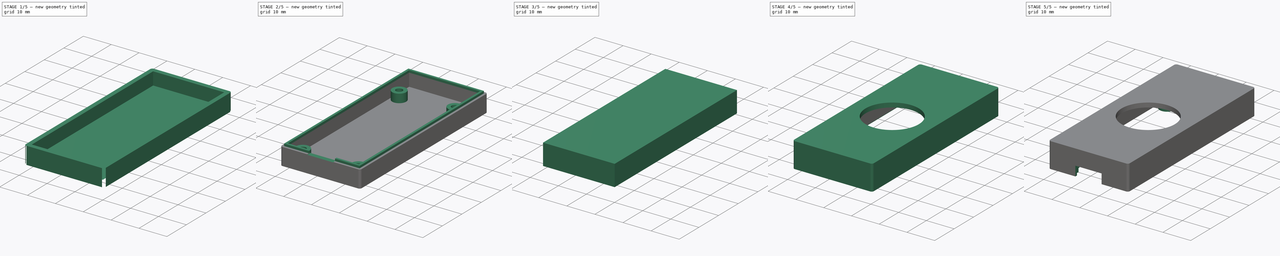
[diagram: build sequence overview — one tinted view per stage of 5, left to right]
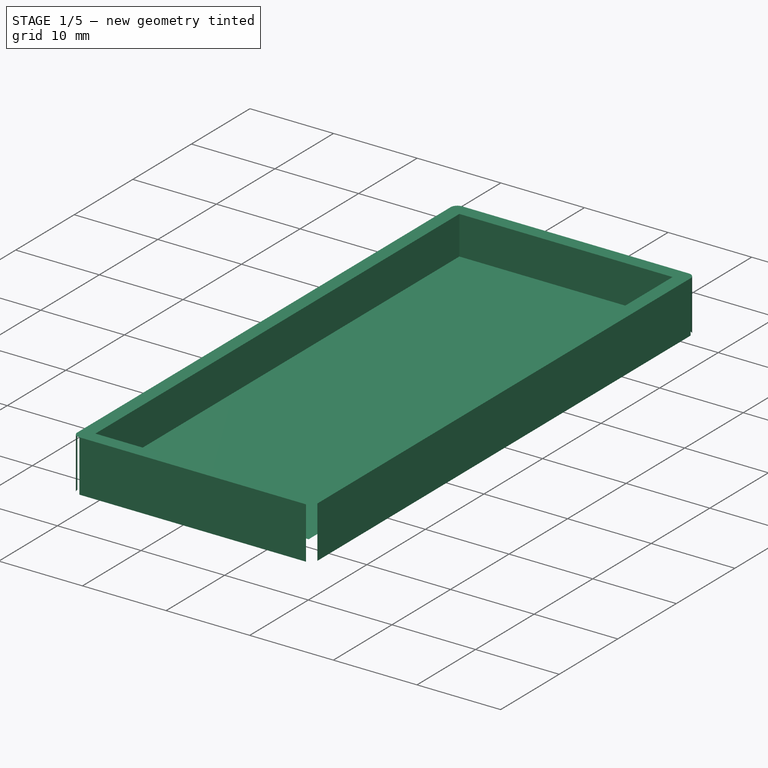
[diagram: stage 1 of 5 — iso view after this stage's code; geometry added in this stage tinted green]
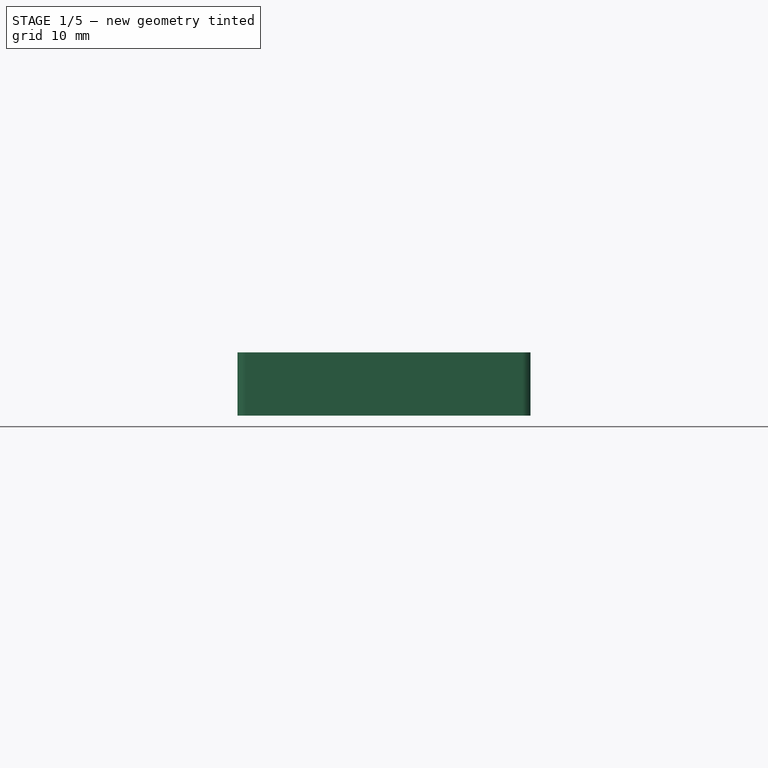
[diagram: stage 1 of 5 — front view after this stage's code; geometry added in this stage tinted green]
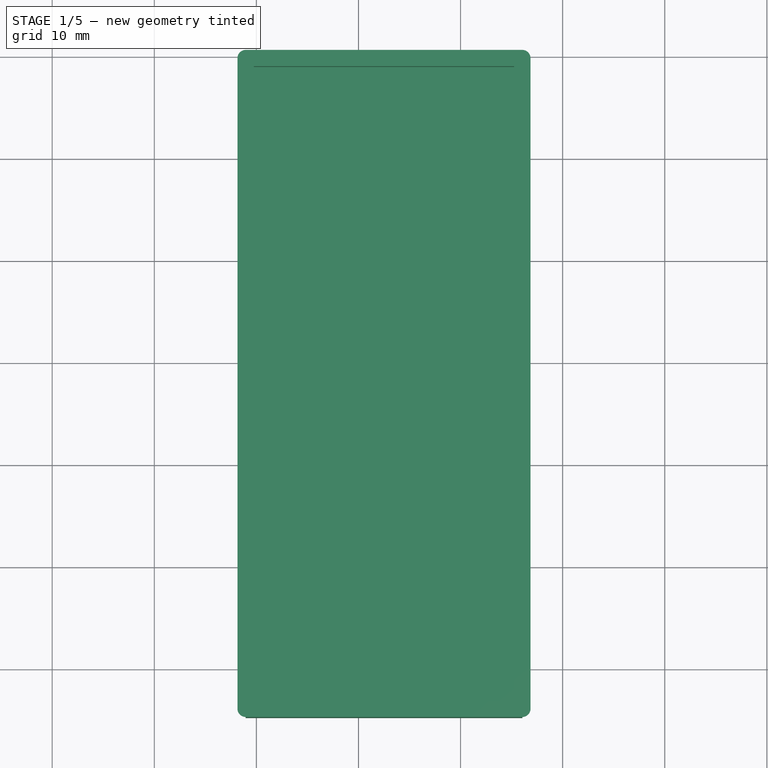
[diagram: stage 1 of 5 — top view after this stage's code; geometry added in this stage tinted green]
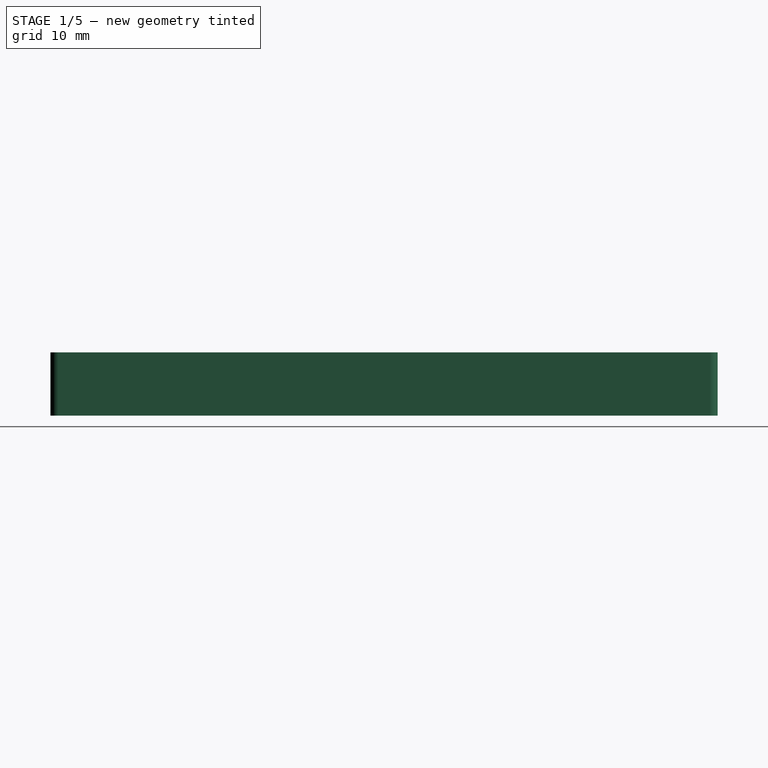
[diagram: stage 1 of 5 — right view after this stage's code; geometry added in this stage tinted green]
FCSTD DOCUMENT  (FreeCAD 1.0R39319 (Git))
Label: passkey_v3_case
License: All rights reserved
LicenseURL: https://en.wikipedia.org/wiki/All_rights_reserved
objects: Part::Feature×44, Sketcher::SketchObject×13, PartDesign::Pad×6, PartDesign::Pocket×6, App::Part×5, PartDesign::SubShapeBinder×3, PartDesign::Thickness×2, PartDesign::Fillet×2, PartDesign::Body×2, PartDesign::Hole×1
note: 126 computed .brp shape members not serialized (recipe doc carries the construction recipe); baked Part::Feature solids carry a one-line shape summary decoded from their .brp

FEATURE [Part::Feature] Part__Feature  label="R_0402_1005Metric"
  Placement = pos=(14.5,37.75,1.595) rot=(0,0,1;1.5708rad)
  shape: bbox 0.5 x 1 x 0.35 mm, 26 faces (baked)
FEATURE [Part::Feature] Part__Feature001  label="R_0402_1005Metric001"
  Placement = pos=(3.5,42,1.595) rot=(0,0,1;3.14159rad)
  shape: bbox 1 x 0.5 x 0.35 mm, 26 faces (baked)
FEATURE [Part::Feature] Part__Feature002  label="QFN-56-1EP_7x7mm_P0.4mm_EP3.2x3.2mm"
  Placement = pos=(12.5,18,1.595) rot=(0,0,1;3.14159rad)
  shape: bbox 7 x 7 x 0.9 mm, 350 faces (baked)
FEATURE [Part::Feature] Part__Feature003  label="R_0402_1005Metric002"
  Placement = pos=(19.7,24.6,1.595) rot=(0,0,1;0rad)
  shape: bbox 1 x 0.5 x 0.35 mm, 26 faces (baked)
FEATURE [Part::Feature] Part__Feature004  label="C_0402_1005Metric"
  Placement = pos=(2.3375,7.9825,1.595) rot=(0,0,1;1.5708rad)
  shape: bbox 0.5 x 1 x 0.5 mm, 28 faces (baked)
FEATURE [Part::Feature] Part__Feature005  label="COMPOUND"
  shape: bbox 8.94 x 7.9 x 4.661 mm, 889 faces, 42 solids (baked)
FEATURE [App::Part] G_SWITCH_GT_USB_7010ASV  label="G-SWITCH_GT-USB-7010ASV"
  Group = -> [Part__Feature005]
  Origin = -> Origin
  Placement = pos=(12.5,2.3,1.595) rot=(0,0,1;0rad)
FEATURE [Part::Feature] Part__Feature006  label="C_0402_1005Metric001"
  Placement = pos=(22.25,21.1,1.595) rot=(0,0,1;3.14159rad)
  shape: bbox 1 x 0.5 x 0.5 mm, 28 faces (baked)
FEATURE [Part::Feature] Part__Feature007  label="Crystal_SMD_2520-4Pin_2.5x2.0mm"
  Placement = pos=(22.4,23.4,1.595) rot=(0,0,1;1.5708rad)
  shape: bbox 2 x 2.5 x 0.83 mm, 168 faces (baked)
FEATURE [Part::Feature] Part__Feature008  label="C_0402_1005Metric002"
  Placement = pos=(6.4,10.7,1.595) rot=(0,0,1;1.5708rad)
  shape: bbox 0.5 x 1 x 0.5 mm, 28 faces (baked)
FEATURE [Part::Feature] Part__Feature009  label="D0402-BI"
  Placement = pos=(14.45,8.43,1.595) rot=(0,0,-1;1.5708rad)
  shape: bbox 0.5 x 1 x 0.351 mm, 320 faces, 18 solids (baked)
FEATURE [Part::Feature] Part__Feature010  label="R_0402_1005Metric003"
  Placement = pos=(15.7,8.44,1.595) rot=(0,0,1;1.5708rad)
  shape: bbox 0.5 x 1 x 0.35 mm, 26 faces (baked)
FEATURE [Part::Feature] Part__Feature011  label="R_0402_1005Metric004"
  Placement = pos=(11.95,8.43,1.595) rot=(0,0,1;1.5708rad)
  shape: bbox 0.5 x 1 x 0.35 mm, 26 faces (baked)
FEATURE [Part::Feature] Part__Feature012  label="C_0402_1005Metric003"
  Placement = pos=(10,23.8,1.595) rot=(0,0,1;1.5708rad)
  shape: bbox 0.5 x 1 x 0.5 mm, 28 faces (baked)
FEATURE [Part::Feature] Part__Feature013  label="R_0402_1005Metric005"
  Placement = pos=(19,43.7,1.595) rot=(0,0,1;1.5708rad)
  shape: bbox 0.5 x 1 x 0.35 mm, 26 faces (baked)
FEATURE [Part::Feature] Part__Feature014  label="C_0402_1005Metric004"
  Placement = pos=(18.7,7.98,1.595) rot=(0,0,1;0rad)
  shape: bbox 1 x 0.5 x 0.5 mm, 28 faces (baked)
FEATURE [Part::Feature] Part__Feature015  label="C_0402_1005Metric005"
  Placement = pos=(12.85,10.71,1.595) rot=(0,0,-1;1.5708rad)
  shape: bbox 0.5 x 1 x 0.5 mm, 28 faces (baked)
FEATURE [Part::Feature] Part__Feature016  label="Fuse_0402_1005Metric"
  Placement = pos=(8.2,8.455,1.595) rot=(0,0,1;1.5708rad)
  shape: bbox 0.52 x 1 x 0.35 mm, 26 faces (baked)
FEATURE [Part::Feature] Part__Feature017  label="D0402-BI001"
  Placement = pos=(10.7,8.45,1.595) rot=(0,0,1;1.5708rad)
  shape: bbox 0.5 x 1 x 0.351 mm, 320 faces, 18 solids (baked)
FEATURE [Part::Feature] Part__Feature018  label="C_0402_1005Metric006"
  Placement = pos=(17.5,14.57,1.595) rot=(0,0,-1;1.5708rad)
  shape: bbox 0.5 x 1 x 0.5 mm, 28 faces (baked)
FEATURE [Part::Feature] Part__Feature019  label="SW_SPST_B3U-1000P"
  Placement = pos=(21.75,42.5,1.595) rot=(0,0,-1;1.5708rad)
  shape: bbox 2.5 x 4 x 1.6 mm, 81 faces (baked)
FEATURE [Part::Feature] Part__Feature020  label="C_0402_1005Metric007"
  Placement = pos=(9.75,37.75,1.595) rot=(0,0,-1;1.5708rad)
  shape: bbox 0.5 x 1 x 0.5 mm, 28 faces (baked)
FEATURE [Part::Feature] Part__Feature021  label="C_0402_1005Metric008"
  Placement = pos=(12.65,23.8,1.595) rot=(0,0,-1;1.5708rad)
  shape: bbox 0.5 x 1 x 0.5 mm, 28 faces (baked)
FEATURE [Part::Feature] Part__Feature022  label="R_0402_1005Metric006"
  Placement = pos=(9.45,8.44,1.595) rot=(0,0,1;1.5708rad)
  shape: bbox 0.5 x 1 x 0.35 mm, 26 faces (baked)
FEATURE [Part::Feature] Part__Feature023  label="SOT-23"
  Placement = pos=(4.9,7.9625,1.595) rot=(0,0,1;0rad)
  shape: bbox 2.5 x 3 x 1.2 mm, 69 faces (baked)
FEATURE [Part::Feature] Part__Feature024  label="R_0402_1005Metric007"
  Placement = pos=(13.2,8.44,1.595) rot=(0,0,1;1.5708rad)
  shape: bbox 0.5 x 1 x 0.35 mm, 26 faces (baked)
FEATURE [Part::Feature] Part__Feature025  label="C_0402_1005Metric009"
  Placement = pos=(22.5,25.8,1.595) rot=(0,0,1;0rad)
  shape: bbox 1 x 0.5 x 0.5 mm, 28 faces (baked)
FEATURE [Part::Feature] Part__Feature026  label="mod"
  Placement = pos=(-0.431792,-1.84981,21) rot=(0,0,1;0rad)
  shape: bbox 21 x 6.2 x 21 mm, 29 faces (baked)
FEATURE [Part::Feature] Part__Feature027  label="CP-6852 PCB"
  Placement = pos=(-0.431792,3.25019,21) rot=(0,0,1;0rad)
  shape: bbox 17.4 x 6.3 x 17.4 mm, 20 faces (baked)
FEATURE [App::Part] ZW_101  label="ZW-101"
  Group = -> [Part__Feature026,Part__Feature027]
  Origin = -> Origin001
FEATURE [Part::Feature] Part__Feature028  label="HolderWStub"
  shape: bbox 25 x 6.2 x 25 mm, 49 faces (baked)
FEATURE [App::Part] ZW101_w_holder
  Group = -> [ZW_101,Part__Feature028]
  Origin = -> Origin002
  Placement = pos=(12.75,47,6.595) rot=(1,0,0;1.5708rad)
FEATURE [Part::Feature] Part__Feature029  label="Passkey_V3 1.28.1"
  shape: bbox 2 x 3.02 x 0.611 mm, 428 faces, 14 solids (baked)
FEATURE [App::Part] USON_8_L3_0_W2_0_P0_50_BL_EP  label="USON-8_L3.0-W2.0-P0.50-BL-EP"
  Group = -> [Part__Feature029]
  Origin = -> Origin003
  Placement = pos=(19.3321,9.75,1.595) rot=(0,0,1;1.5708rad)
FEATURE [Part::Feature] Part__Feature030  label="CONN-SMD_6P-P1.00_XUNPU_WAFER-SH1.0-6PWB"
  Placement = pos=(12.5,42,3.195) rot=(0,0,1;3.14159rad)
  shape: bbox 8.36 x 5.05 x 3.14 mm, 536 faces, 3 solids (baked)
FEATURE [Part::Feature] Part__Feature031  label="R_0402_1005Metric008"
  Placement = pos=(13,37.75,1.595) rot=(0,0,1;1.5708rad)
  shape: bbox 0.5 x 1 x 0.35 mm, 26 faces (baked)
FEATURE [Part::Feature] Part__Feature032  label="LED_0603_1608Metric"
  Placement = pos=(3.7125,44,1.595) rot=(0,0,1;3.14159rad)
  shape: bbox 1.6 x 0.8 x 1.1 mm, 50 faces (baked)
FEATURE [Part::Feature] Part__Feature033  label="C_0402_1005Metric010"
  Placement = pos=(7.5,15.82,1.595) rot=(0,0,1;1.5708rad)
  shape: bbox 0.5 x 1 x 0.5 mm, 28 faces (baked)
FEATURE [Part::Feature] Part__Feature034  label="R_0402_1005Metric009"
  Placement = pos=(8.65,10.68,1.595) rot=(0,0,-1;1.5708rad)
  shape: bbox 0.5 x 1 x 0.35 mm, 26 faces (baked)
FEATURE [Part::Feature] Part__Feature035  label="C_0402_1005Metric011"
  Placement = pos=(9.65,10.7,1.595) rot=(0,0,1;1.5708rad)
  shape: bbox 0.5 x 1 x 0.5 mm, 28 faces (baked)
FEATURE [Part::Feature] Part__Feature036  label="C_0402_1005Metric012"
  Placement = pos=(7.5,18.55,1.595) rot=(0,0,-1;1.5708rad)
  shape: bbox 0.5 x 1 x 0.5 mm, 28 faces (baked)
FEATURE [Part::Feature] Part__Feature037  label="C_0402_1005Metric013"
  Placement = pos=(7.6,10.7,1.595) rot=(0,0,-1;1.5708rad)
  shape: bbox 0.5 x 1 x 0.5 mm, 28 faces (baked)
FEATURE [Part::Feature] Part__Feature038  label="C_0402_1005Metric014"
  Placement = pos=(17.5,19.55,1.595) rot=(0,0,1;1.5708rad)
  shape: bbox 0.5 x 1 x 0.5 mm, 28 faces (baked)
FEATURE [Part::Feature] Part__Feature039  label="C_0402_1005Metric015"
  Placement = pos=(13.9,10.74,1.595) rot=(0,0,1;1.5708rad)
  shape: bbox 0.5 x 1 x 0.5 mm, 28 faces (baked)
FEATURE [Part::Feature] Part__Feature040  label="C_0402_1005Metric016"
  Placement = pos=(11.5,23.8,1.595) rot=(0,0,-1;1.5708rad)
  shape: bbox 0.5 x 1 x 0.5 mm, 28 faces (baked)
FEATURE [Part::Feature] Part__Feature041  label="C_0402_1005Metric017"
  Placement = pos=(10.65,10.7,1.595) rot=(0,0,1;1.5708rad)
  shape: bbox 0.5 x 1 x 0.5 mm, 28 faces (baked)
FEATURE [Part::Feature] Part__Feature042  label="C_0402_1005Metric018"
  Placement = pos=(11.5,37.75,1.595) rot=(0,0,1;1.5708rad)
  shape: bbox 0.5 x 1 x 0.5 mm, 28 faces (baked)
FEATURE [Part::Feature] Part__Feature043  label="Passkey_V3_PCB"
  shape: bbox 25 x 56 x 1.51 mm, 36 faces (baked)
FEATURE [App::Part] Passkey_V3_1  label="Passkey_V3 1"
  Group = -> [Part__Feature,Part__Feature001,Part__Feature002,Part__Feature003,Part__Feature004,G_SWITCH_GT_USB_7010ASV,Part__Feature006,Part__Feature007,Part__Feature008,Part__Feature009,Part__Feature010,Part__Feature011,Part__Feature012,Part__Feature013,Part__Feature014,Part__Feature015,Part__Feature016,Part__Feature017,Part__Feature018,Part__Feature019,Part__Feature020,Part__Feature021,Part__Feature022,+19 more]
  Origin = -> Origin004
FEATURE [PartDesign::SubShapeBinder] Binder
  BindCopyOnChange = 0
  BindMode = 0
  ClaimChildren = false
  Context = -> Body [Binder.]
  Fuse = false
  MakeFace = true
  OffsetFill = false
  OffsetIntersection = false
  OffsetJoinType = 0
  OffsetOpenResult = false
  PartialLoad = false
  Relative = true
  Support = -> [Passkey_V3_1]
  _Version = 2
FEATURE [Sketcher::SketchObject] Sketch
  ArcFitTolerance = 1e-06
  AttachmentSupport = -> [Binder]
  ExternalGeometry = -> [Binder]
  FullyConstrained = true
  MakeInternals = false
  MapMode = 5
  Placement = pos=(0,0,1.51) rot=(0,0,1;0rad)
  sketch-geometry (6):
    g0: GeomPoint X=12.5 Y=25 Z=0
    g1: GeomPoint [constr] X=12.5 Y=25 Z=0
    g2: LineSegment StartX=-0.25 StartY=59 StartZ=0 EndX=-0.25 EndY=-3.15 EndZ=0
    g3: LineSegment StartX=-0.25 StartY=-3.15 StartZ=0 EndX=25.25 EndY=-3.15 EndZ=0
    g4: LineSegment StartX=25.25 StartY=-3.15 StartZ=0 EndX=25.25 EndY=59 EndZ=0
    g5: LineSegment StartX=25.25 StartY=59 StartZ=0 EndX=-0.25 EndY=59 EndZ=0
  constraints (14):
    c: Symmetric(g-5,g-6,g0)
    c: Coincident(g1,g0)
    c: Coincident(g2,g3)
    c: Coincident(g3,g4)
    c: Coincident(g4,g5)
    c: Coincident(g5,g2)
    c: Vertical(g2)
    c: Vertical(g4)
    c: Horizontal(g3)
    c: Horizontal(g5)
    c: DistanceX(g2,g-4) = 0.25
    c: DistanceX(g-6,g3) = 0.25
    c: DistanceY(g3,g-6) = 0.15
    c: DistanceY(g-5,g4) = 6
FEATURE [PartDesign::Pad] Pad
  Direction = (0,0,1)
  Length = 4.6
  Length2 = 10
  Profile = -> Sketch
  ReferenceAxis = -> Sketch [N_Axis]
  Reversed = true
  Suppressed = false
  Type = 0
FEATURE [PartDesign::Thickness] Thickness
  Base = -> Pad [Face5]
  BaseFeature = -> Pad
  Intersection = false
  Join = 1
  Mode = 0
  SupportTransform = false
  Suppressed = false
  Value = 1.6
FEATURE [PartDesign::Fillet] Fillet
  Base = -> Thickness [Edge19,Edge20,Edge17,Edge22]
  BaseFeature = -> Thickness
  Radius = 0.8
  SupportTransform = false
  Suppressed = false
  UseAllEdges = false
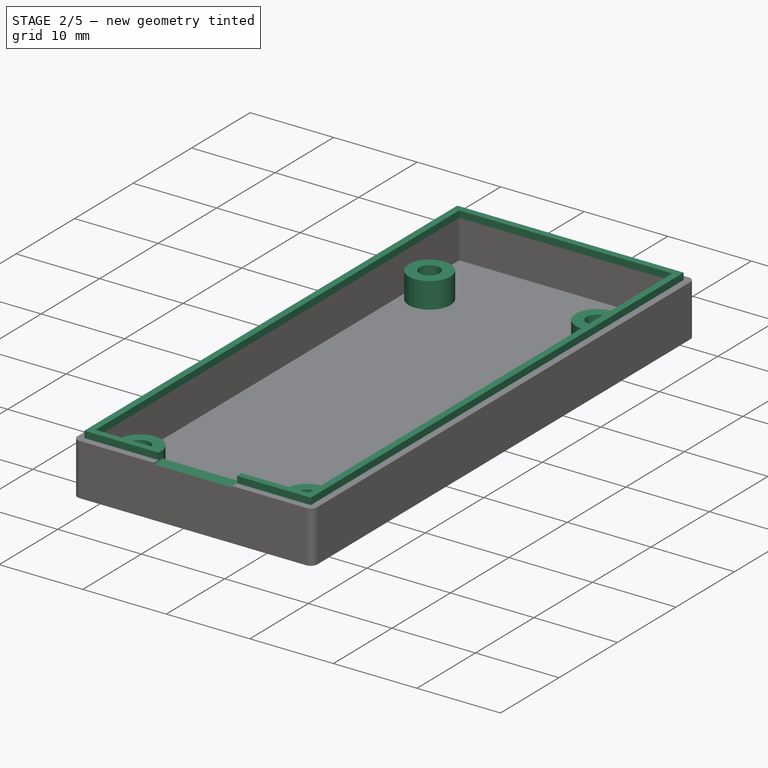
[diagram: stage 2 of 5 — iso view after this stage's code; geometry added in this stage tinted green]
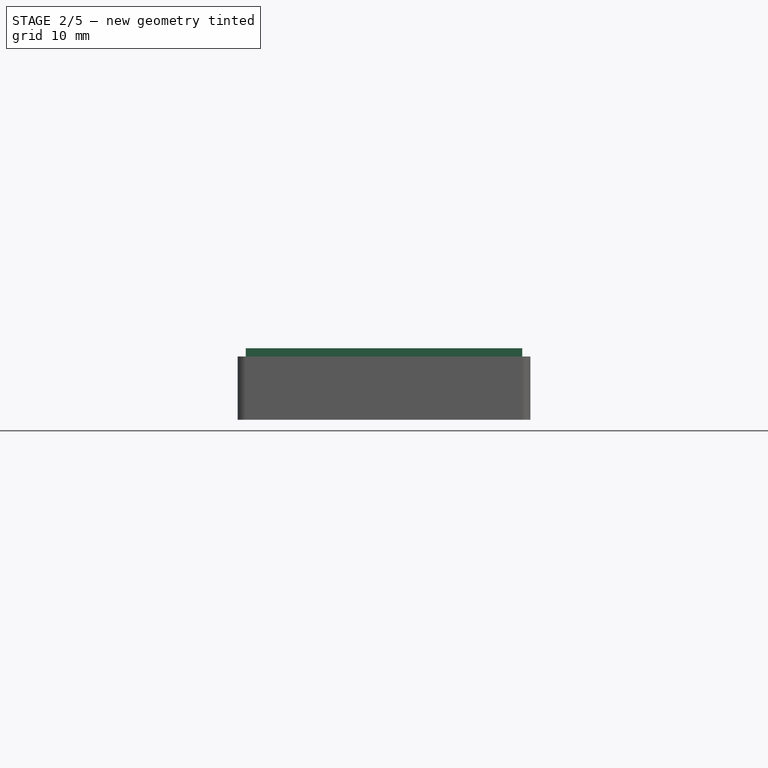
[diagram: stage 2 of 5 — front view after this stage's code; geometry added in this stage tinted green]
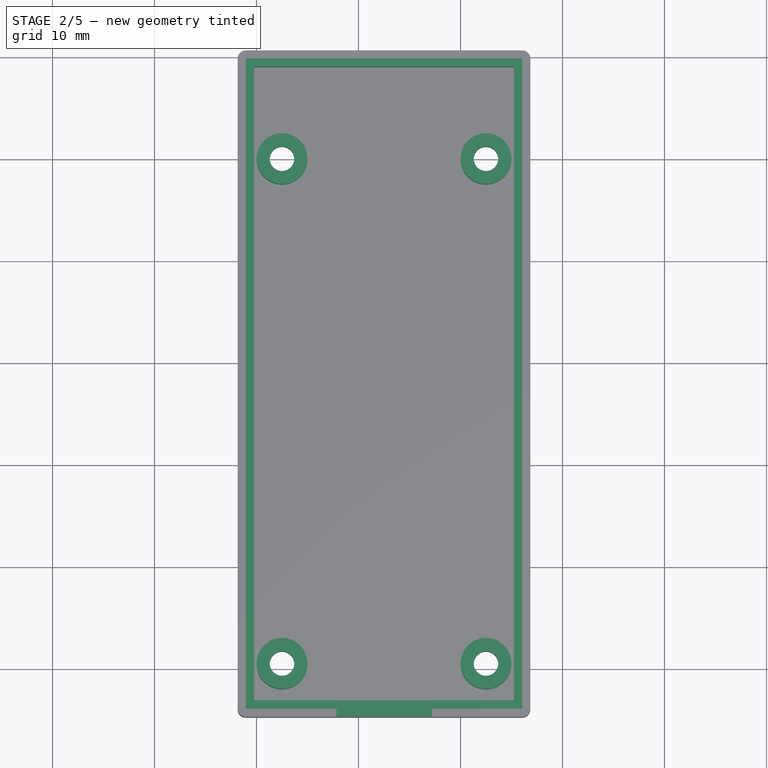
[diagram: stage 2 of 5 — top view after this stage's code; geometry added in this stage tinted green]
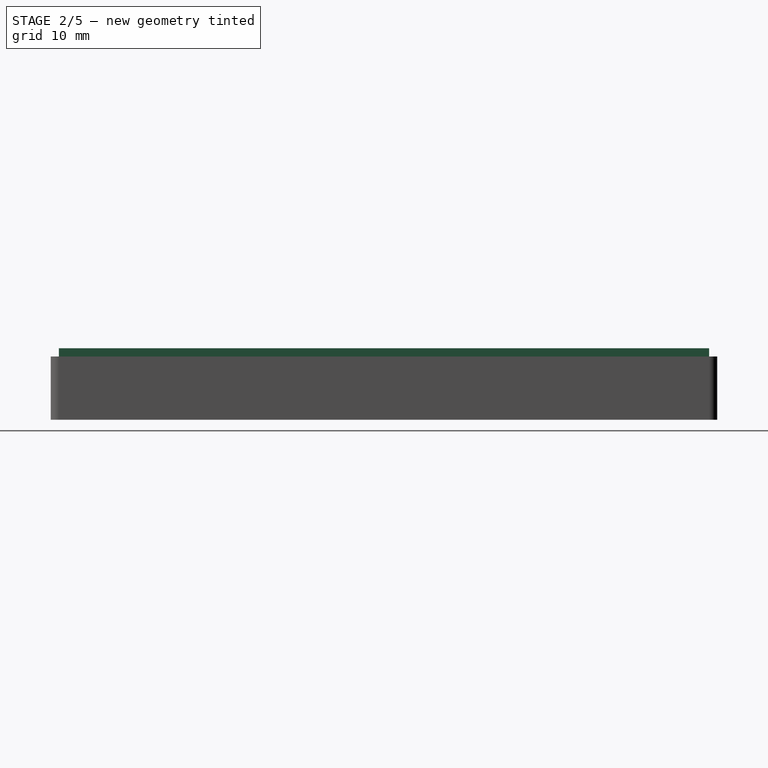
[diagram: stage 2 of 5 — right view after this stage's code; geometry added in this stage tinted green]
FEATURE [Sketcher::SketchObject] Sketch003
  ArcFitTolerance = 1e-06
  AttachmentSupport = -> [Fillet]
  ExternalGeometry = -> [Fillet]
  FullyConstrained = true
  MakeInternals = false
  MapMode = 5
  Placement = pos=(0,0,1.51) rot=(0,0,1;0rad)
  sketch-geometry (10):
    g0: LineSegment StartX=-0.25 StartY=59 StartZ=0 EndX=-0.25 EndY=-3.15 EndZ=0
    g1: LineSegment StartX=-0.25 StartY=-3.15 StartZ=0 EndX=25.25 EndY=-3.15 EndZ=0
    g2: LineSegment StartX=25.25 StartY=-3.15 StartZ=0 EndX=25.25 EndY=59 EndZ=0
    g3: LineSegment StartX=25.25 StartY=59 StartZ=0 EndX=-0.25 EndY=59 EndZ=0
    g4: GeomPoint X=12.5 Y=27.925 Z=0
    g5: LineSegment StartX=26.05 StartY=-3.95 StartZ=0 EndX=26.05 EndY=59.8 EndZ=0
    g6: LineSegment StartX=26.05 StartY=59.8 StartZ=0 EndX=-1.05 EndY=59.8 EndZ=0
    g7: LineSegment StartX=-1.05 StartY=59.8 StartZ=0 EndX=-1.05 EndY=-3.95 EndZ=0
    g8: LineSegment StartX=-1.05 StartY=-3.95 StartZ=0 EndX=26.05 EndY=-3.95 EndZ=0
    g9: GeomPoint [constr] X=12.5 Y=27.925 Z=0
  constraints (23):
    c: Coincident(g0,g1)
    c: Coincident(g1,g2)
    c: Coincident(g2,g3)
    c: Coincident(g3,g0)
    c: Vertical(g0)
    c: Vertical(g2)
    c: Horizontal(g1)
    c: Horizontal(g3)
    c: Coincident(g0,g-4)
    c: Coincident(g1,g-5)
    c: Symmetric(g2,g0,g4)
    c: Coincident(g5,g6)
    c: Coincident(g6,g7)
    c: Coincident(g7,g8)
    c: Coincident(g8,g5)
    c: Vertical(g5)
    c: Vertical(g7)
    c: Horizontal(g6)
    c: Horizontal(g8)
    c: Symmetric(g7,g5,g9)
    c: Coincident(g9,g4)
    c: DistanceX(g6,g0) = 0.8
    c: DistanceY(g0,g6) = 0.8
FEATURE [PartDesign::Pad] Pad002
  BaseFeature = -> Fillet
  Direction = (0,0,1)
  Length = 0.8
  Length2 = 10
  Profile = -> Sketch003
  ReferenceAxis = -> Sketch003 [N_Axis]
  Suppressed = false
  Type = 0
FEATURE [Sketcher::SketchObject] Sketch004
  ArcFitTolerance = 1e-06
  AttachmentSupport = -> [Pad002]
  ExternalGeometry = -> [Binder,Pad002]
  FullyConstrained = true
  MakeInternals = false
  MapMode = 5
  Placement = pos=(0,-3.15,0) rot=(0,0.707107,0.707107;3.14159rad)
  sketch-geometry (4):
    g0: LineSegment StartX=-17.22 StartY=2.31 StartZ=0 EndX=-17.22 EndY=1.345 EndZ=0
    g1: LineSegment StartX=-17.22 StartY=1.345 StartZ=0 EndX=-7.83 EndY=1.345 EndZ=0
    g2: LineSegment StartX=-7.83 StartY=1.345 StartZ=0 EndX=-7.83 EndY=2.31 EndZ=0
    g3: LineSegment StartX=-7.83 StartY=2.31 StartZ=0 EndX=-17.22 EndY=2.31 EndZ=0
  constraints (12):
    c: Coincident(g0,g1)
    c: Coincident(g1,g2)
    c: Coincident(g2,g3)
    c: Coincident(g3,g0)
    c: Vertical(g0)
    c: Vertical(g2)
    c: Horizontal(g1)
    c: Horizontal(g3)
    c: DistanceX(g0,g-7) = 0.25
    c: DistanceX(g-3,g1) = 0.25
    c: DistanceY(g0,g-6) = 0.25
    c: PointOnObject(g0,g-8)
FEATURE [PartDesign::Pocket] Pocket001
  BaseFeature = -> Pad002
  Direction = (0,-1,2e-16)
  Length = 5
  Length2 = 5
  Profile = -> Sketch004
  ReferenceAxis = -> Sketch004 [N_Axis]
  Suppressed = false
  Type = 0
FEATURE [Sketcher::SketchObject] Sketch005
  ArcFitTolerance = 1e-06
  AttachmentSupport = -> [Pocket001]
  ExternalGeometry = -> [Binder]
  FullyConstrained = true
  MakeInternals = false
  MapMode = 5
  Placement = pos=(0,0,-3.09) rot=(0,0,1;0rad)
  sketch-geometry (4):
    g0: Circle CenterX=2.5 CenterY=50 CenterZ=0 NormalX=0 NormalY=0 NormalZ=1 AngleXU=0 Radius=2.5
    g1: Circle CenterX=22.5 CenterY=50 CenterZ=0 NormalX=0 NormalY=0 NormalZ=1 AngleXU=0 Radius=2.5
    g2: Circle CenterX=2.5 CenterY=0.5 CenterZ=0 NormalX=0 NormalY=0 NormalZ=1 AngleXU=0 Radius=2.5
    g3: Circle CenterX=22.5 CenterY=0.5 CenterZ=0 NormalX=0 NormalY=0 NormalZ=1 AngleXU=0 Radius=2.5
  constraints (8):
    c: Coincident(g0,g-3)
    c: Coincident(g1,g-4)
    c: Coincident(g2,g-5)
    c: Coincident(g3,g-6)
    c: Equal(g3,g2)
    c: Equal(g2,g0)
    c: Equal(g0,g1)
    c: Radius(g0) = 2.5
FEATURE [PartDesign::Pad] Pad003
  BaseFeature = -> Pocket001
  Direction = (0,0,1)
  Length = 10
  Length2 = 10
  Profile = -> Sketch005
  ReferenceAxis = -> Sketch005 [N_Axis]
  Suppressed = false
  Type = 3
  UpToFace = -> Binder [Face4131]
FEATURE [Sketcher::SketchObject] Sketch006
  ArcFitTolerance = 1e-06
  AttachmentSupport = -> [Pad003]
  ExternalGeometry = -> [Pad003]
  FullyConstrained = true
  MakeInternals = false
  MapMode = 5
  Placement = pos=(0,0,-4.69) rot=(1,0,0;3.14159rad)
  sketch-geometry (4):
    g0: Circle CenterX=2.5 CenterY=-0.5 CenterZ=0 NormalX=0 NormalY=0 NormalZ=1 AngleXU=0 Radius=1
    g1: Circle CenterX=22.5 CenterY=-0.5 CenterZ=0 NormalX=0 NormalY=0 NormalZ=1 AngleXU=0 Radius=1
    g2: Circle CenterX=2.5 CenterY=-50 CenterZ=0 NormalX=0 NormalY=0 NormalZ=1 AngleXU=0 Radius=1
    g3: Circle CenterX=22.5 CenterY=-50 CenterZ=0 NormalX=0 NormalY=0 NormalZ=1 AngleXU=0 Radius=1
  constraints (8):
    c: Coincident(g0,g-5)
    c: Coincident(g1,g-4)
    c: Coincident(g2,g-6)
    c: Coincident(g3,g-3)
    c: Equal(g2,g3)
    c: Equal(g3,g0)
    c: Equal(g0,g1)
    c: Radius(g0) = 1
FEATURE [PartDesign::Hole] Hole
  BaseFeature = -> Pad003
  CustomThreadClearance = 0
  Depth = 25
  DepthType = 0
  Diameter = 2.4
  DrillForDepth = false
  DrillPoint = 1
  DrillPointAngle = 118
  HoleCutCountersinkAngle = 90
  HoleCutCustomValues = false
  HoleCutDepth = 0
  HoleCutDiameter = 4
  HoleCutType = 2
  ModelThread = false
  Profile = -> Sketch006
  Suppressed = false
  Tapered = false
  TaperedAngle = 90
  ThreadClass = 0
  ThreadDepth = 25
  ThreadDepthType = 0
  ThreadDirection = 0
  ThreadFit = 0
  ThreadSize = 6
  ThreadType = 1
  Threaded = false
  UseCustomThreadClearance = false
  expr: HoleCutDiameter = 4
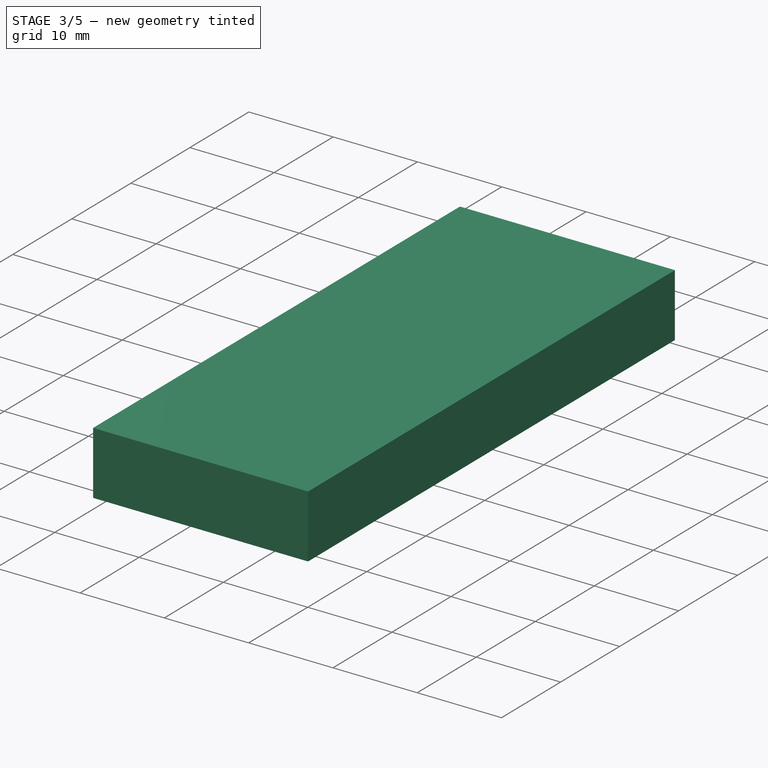
[diagram: stage 3 of 5 — iso view after this stage's code; geometry added in this stage tinted green]
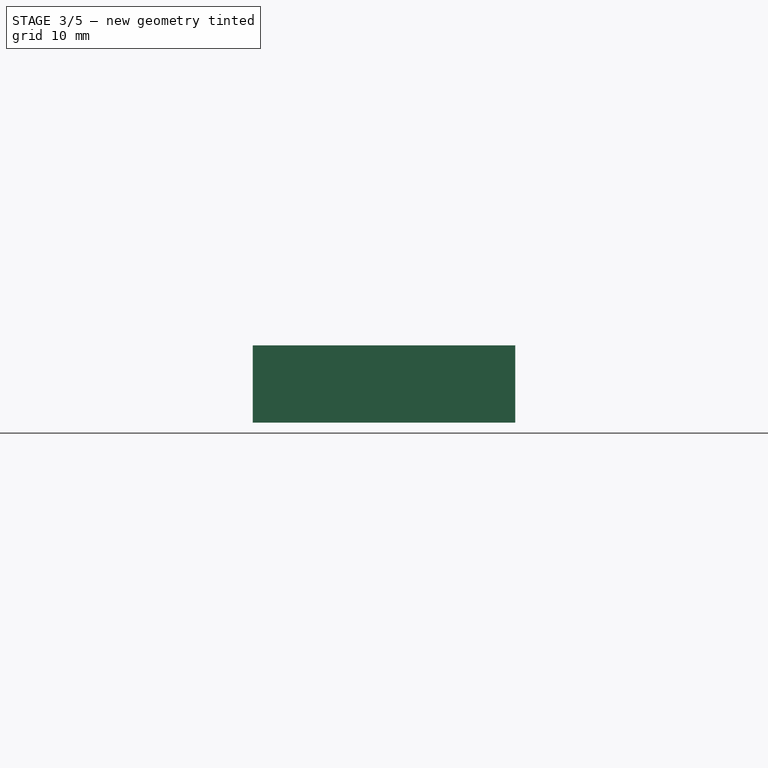
[diagram: stage 3 of 5 — front view after this stage's code; geometry added in this stage tinted green]
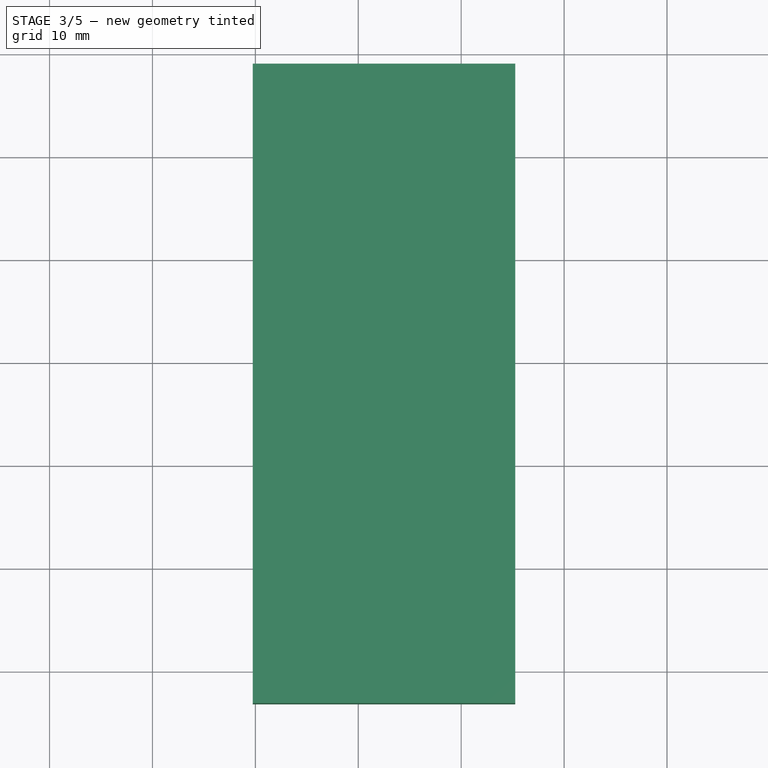
[diagram: stage 3 of 5 — top view after this stage's code; geometry added in this stage tinted green]
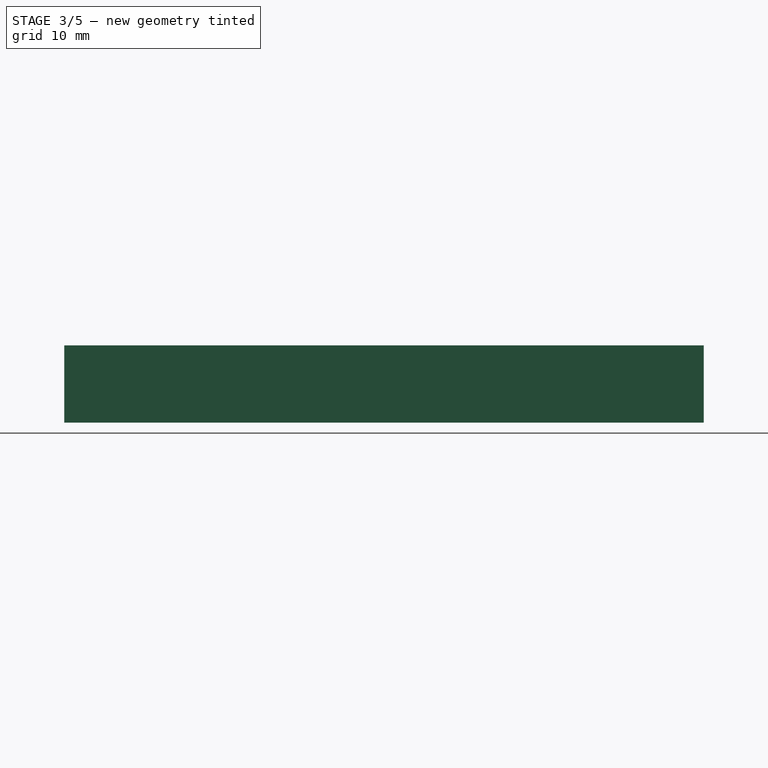
[diagram: stage 3 of 5 — right view after this stage's code; geometry added in this stage tinted green]
FEATURE [Sketcher::SketchObject] Sketch001
  ArcFitTolerance = 1e-06
  AttachmentSupport = -> [Thickness]
  ExternalGeometry = -> [Binder]
  FullyConstrained = true
  MakeInternals = false
  MapMode = 5
  Placement = pos=(0,0,-3.09) rot=(0,0,1;0rad)
  sketch-geometry (4):
    g0: Circle CenterX=2.5 CenterY=0.5 CenterZ=0 NormalX=0 NormalY=0 NormalZ=1 AngleXU=0 Radius=2.5
    g1: Circle CenterX=22.5 CenterY=0.5 CenterZ=0 NormalX=0 NormalY=0 NormalZ=1 AngleXU=0 Radius=2.5
    g2: Circle CenterX=2.5 CenterY=50 CenterZ=0 NormalX=0 NormalY=0 NormalZ=1 AngleXU=0 Radius=2.5
    g3: Circle CenterX=22.5 CenterY=50 CenterZ=0 NormalX=0 NormalY=0 NormalZ=1 AngleXU=0 Radius=2.5
  constraints (8):
    c: Coincident(g0,g-5)
    c: Coincident(g1,g-6)
    c: Coincident(g2,g-3)
    c: Coincident(g3,g-4)
    c: Equal(g3,g2)
    c: Equal(g2,g0)
    c: Equal(g0,g1)
    c: Radius(g0) = 2.5
FEATURE [PartDesign::Pad] Pad001
  BaseFeature = -> Thickness
  Direction = (0,0,1)
  Length = 10
  Length2 = 10
  Profile = -> Sketch001
  ReferenceAxis = -> Sketch001 [N_Axis]
  Suppressed = false
  Type = 3
  UpToFace = -> Binder [Face4131]
FEATURE [Sketcher::SketchObject] Sketch002
  ArcFitTolerance = 1e-06
  AttachmentSupport = -> [Pad001]
  ExternalGeometry = -> [Pad001]
  FullyConstrained = true
  MakeInternals = false
  MapMode = 5
  sketch-geometry (4):
    g0: Circle CenterX=2.5 CenterY=50 CenterZ=0 NormalX=0 NormalY=0 NormalZ=1 AngleXU=0 Radius=1.6
    g1: Circle CenterX=22.5 CenterY=50 CenterZ=0 NormalX=0 NormalY=0 NormalZ=1 AngleXU=0 Radius=1.6
    g2: Circle CenterX=2.5 CenterY=0.5 CenterZ=0 NormalX=0 NormalY=0 NormalZ=1 AngleXU=0 Radius=1.6
    g3: Circle CenterX=22.5 CenterY=0.5 CenterZ=0 NormalX=0 NormalY=0 NormalZ=1 AngleXU=0 Radius=1.6
  constraints (8):
    c: Coincident(g0,g-3)
    c: Coincident(g1,g-4)
    c: Coincident(g2,g-5)
    c: Coincident(g3,g-6)
    c: Equal(g3,g2)
    c: Equal(g2,g0)
    c: Equal(g0,g1)
    c: Radius(g0) = 1.6
FEATURE [PartDesign::Pocket] Pocket
  BaseFeature = -> Pad001
  Direction = (0,0,-1)
  Length = 3
  Length2 = 5
  Profile = -> Sketch002
  ReferenceAxis = -> Sketch002 [N_Axis]
  Suppressed = false
  Type = 0
FEATURE [PartDesign::Body] Body  label="Bottom"
  AllowCompound = false
  Group = -> [Binder,Sketch,Pad,Thickness,Sketch001,Pad001,Sketch002,Pocket,Fillet,Sketch003,Pad002,Sketch004,Pocket001,Sketch005,Pad003,Sketch006,Hole]
  Origin = -> Origin005
  Tip = -> Hole
FEATURE [PartDesign::SubShapeBinder] Binder001
  BindCopyOnChange = 0
  BindMode = 0
  ClaimChildren = false
  Context = -> Body001 [Binder001.]
  Fuse = false
  MakeFace = true
  OffsetFill = false
  OffsetIntersection = false
  OffsetJoinType = 0
  OffsetOpenResult = false
  PartialLoad = false
  Relative = true
  Support = -> [Body]
  _Version = 2
FEATURE [Sketcher::SketchObject] Sketch007
  ArcFitTolerance = 1e-06
  AttachmentSupport = -> [Binder001]
  ExternalGeometry = -> [Binder001]
  FullyConstrained = true
  MakeInternals = false
  MapMode = 5
  Placement = pos=(0,0,1.51) rot=(0,0,1;0rad)
  sketch-geometry (5):
    g0: GeomPoint X=12.5 Y=27.925 Z=0
    g1: LineSegment StartX=-0.25 StartY=59 StartZ=0 EndX=-0.25 EndY=-3.15 EndZ=0
    g2: LineSegment StartX=-0.25 StartY=-3.15 StartZ=0 EndX=25.25 EndY=-3.15 EndZ=0
    g3: LineSegment StartX=25.25 StartY=-3.15 StartZ=0 EndX=25.25 EndY=59 EndZ=0
    g4: LineSegment StartX=25.25 StartY=59 StartZ=0 EndX=-0.25 EndY=59 EndZ=0
  constraints (11):
    c: Symmetric(g-5,g-4,g0)
    c: Coincident(g1,g2)
    c: Coincident(g2,g3)
    c: Coincident(g3,g4)
    c: Coincident(g4,g1)
    c: Vertical(g1)
    c: Vertical(g3)
    c: Horizontal(g2)
    c: Horizontal(g4)
    c: Coincident(g1,g-7)
    c: Coincident(g2,g-8)
FEATURE [PartDesign::Pad] Pad004
  Direction = (0,0,1)
  Length = 7.5
  Length2 = 10
  Profile = -> Sketch007
  ReferenceAxis = -> Sketch007 [N_Axis]
  Suppressed = false
  Type = 0
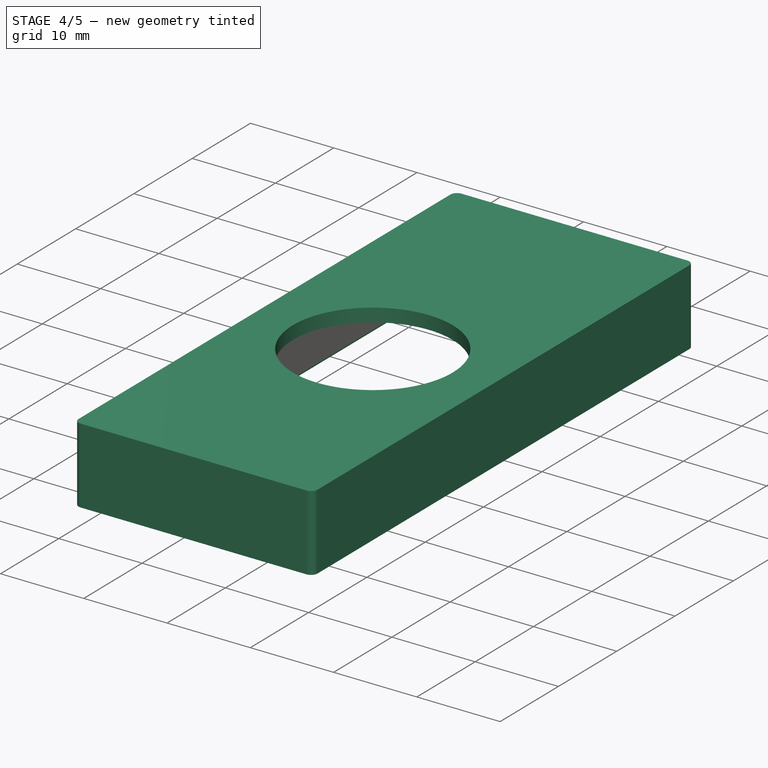
[diagram: stage 4 of 5 — iso view after this stage's code; geometry added in this stage tinted green]
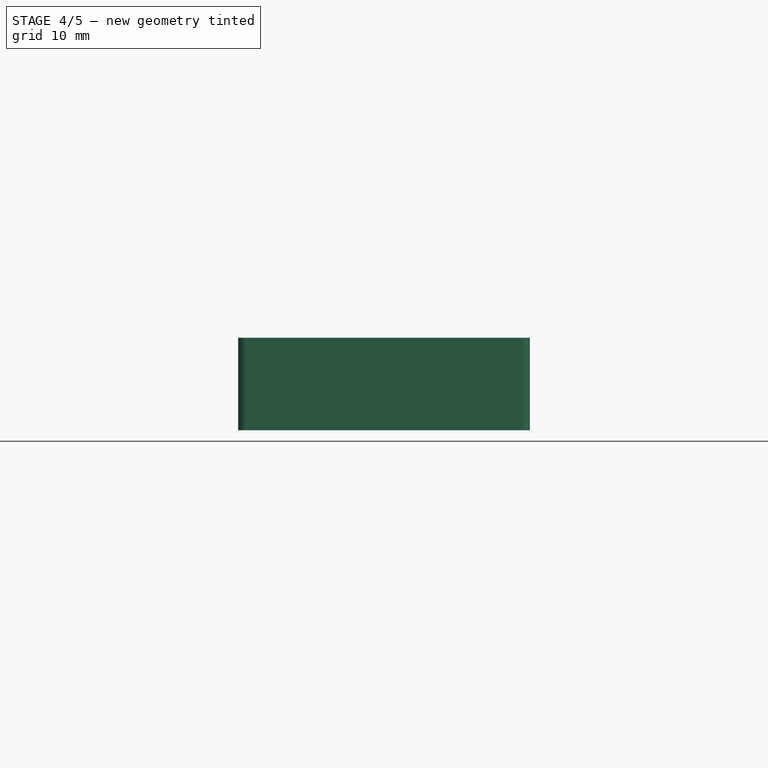
[diagram: stage 4 of 5 — front view after this stage's code; geometry added in this stage tinted green]
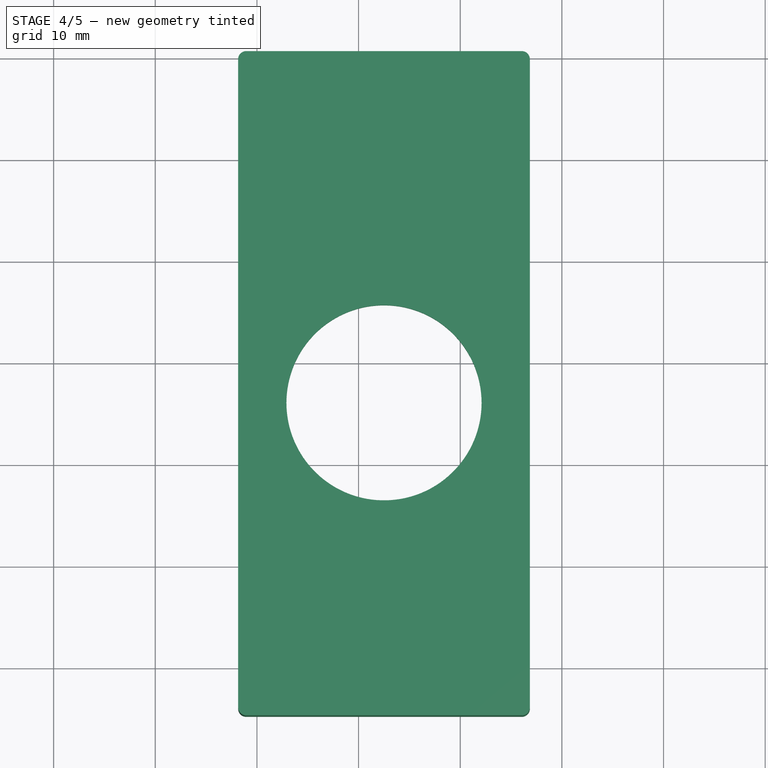
[diagram: stage 4 of 5 — top view after this stage's code; geometry added in this stage tinted green]
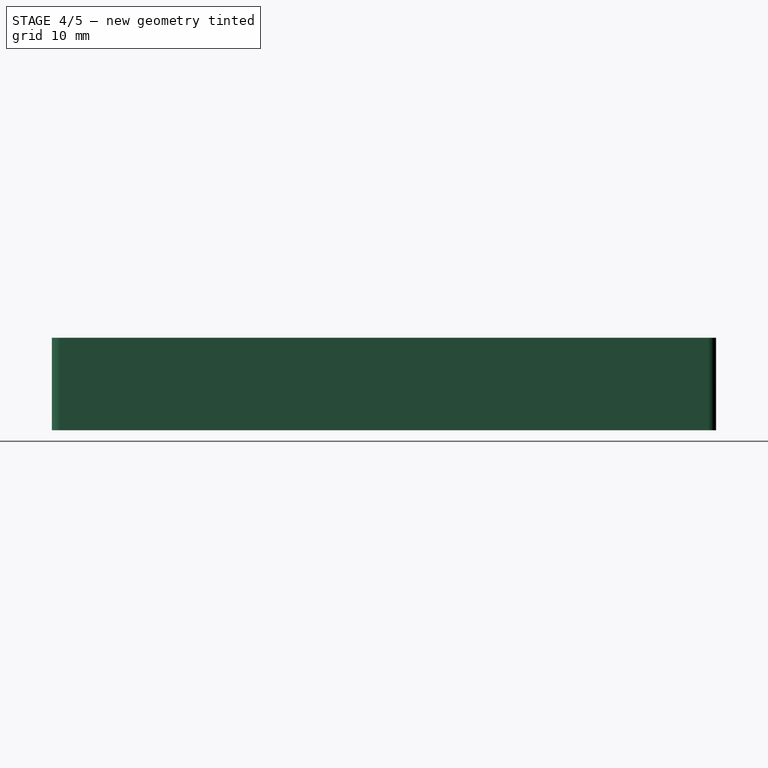
[diagram: stage 4 of 5 — right view after this stage's code; geometry added in this stage tinted green]
FEATURE [PartDesign::Thickness] Thickness001
  Base = -> Pad004 [Face5]
  BaseFeature = -> Pad004
  Intersection = false
  Join = 1
  Mode = 0
  SupportTransform = false
  Suppressed = false
  Value = 1.6
FEATURE [PartDesign::SubShapeBinder] Binder002
  BindCopyOnChange = 0
  BindMode = 0
  ClaimChildren = false
  Context = -> Body001 [Binder002.]
  Fuse = false
  MakeFace = true
  OffsetFill = false
  OffsetIntersection = false
  OffsetJoinType = 0
  OffsetOpenResult = false
  PartialLoad = false
  Relative = true
  Support = -> [Passkey_V3_1]
  _Version = 2
FEATURE [Sketcher::SketchObject] Sketch008
  ArcFitTolerance = 1e-06
  AttachmentSupport = -> [Thickness001]
  ExternalGeometry = -> [Binder002]
  FullyConstrained = true
  MakeInternals = false
  MapMode = 5
  Placement = pos=(0,0,10.61) rot=(0,0,1;0rad)
  sketch-geometry (2):
    g0: GeomPoint X=12.5 Y=26 Z=0
    g1: Circle CenterX=12.5 CenterY=26 CenterZ=0 NormalX=0 NormalY=0 NormalZ=1 AngleXU=0 Radius=9.6
  constraints (3):
    c: Symmetric(g-5,g-3,g0)
    c: Coincident(g1,g0)
    c: Radius(g1) = 9.6
FEATURE [PartDesign::Pocket] Pocket002
  BaseFeature = -> Thickness001
  Direction = (0,0,-1)
  Length = 5
  Length2 = 5
  Profile = -> Sketch008
  ReferenceAxis = -> Sketch008 [N_Axis]
  Suppressed = false
  Type = 0
FEATURE [Sketcher::SketchObject] Sketch009
  ArcFitTolerance = 1e-06
  AttachmentSupport = -> [Pocket002]
  ExternalGeometry = -> [Pocket002]
  FullyConstrained = true
  MakeInternals = false
  MapMode = 5
  Placement = pos=(0,0,1.51) rot=(1,0,0;3.14159rad)
  sketch-geometry (8):
    g0: LineSegment StartX=-0.25 StartY=3.15 StartZ=0 EndX=-0.25 EndY=-59 EndZ=0
    g1: LineSegment StartX=-0.25 StartY=-59 StartZ=0 EndX=25.25 EndY=-59 EndZ=0
    g2: LineSegment StartX=25.25 StartY=-59 StartZ=0 EndX=25.25 EndY=3.15 EndZ=0
    g3: LineSegment StartX=25.25 StartY=3.15 StartZ=0 EndX=-0.25 EndY=3.15 EndZ=0
    g4: LineSegment StartX=-1.05 StartY=3.95 StartZ=0 EndX=-1.05 EndY=-59.8 EndZ=0
    g5: LineSegment StartX=-1.05 StartY=-59.8 StartZ=0 EndX=26.05 EndY=-59.8 EndZ=0
    g6: LineSegment StartX=26.05 StartY=-59.8 StartZ=0 EndX=26.05 EndY=3.95 EndZ=0
    g7: LineSegment StartX=26.05 StartY=3.95 StartZ=0 EndX=-1.05 EndY=3.95 EndZ=0
  constraints (22):
    c: Coincident(g0,g1)
    c: Coincident(g1,g2)
    c: Coincident(g2,g3)
    c: Coincident(g3,g0)
    c: Vertical(g0)
    c: Vertical(g2)
    c: Horizontal(g1)
    c: Horizontal(g3)
    c: Coincident(g0,g-4)
    c: Coincident(g1,g-5)
    c: Coincident(g4,g5)
    c: Coincident(g5,g6)
    c: Coincident(g6,g7)
    c: Coincident(g7,g4)
    c: Vertical(g4)
    c: Vertical(g6)
    c: Horizontal(g5)
    c: Horizontal(g7)
    c: DistanceX(g1,g5) = 0.8
    c: DistanceY(g5,g1) = 0.8
    c: DistanceX(g4,g0) = 0.8
    c: DistanceY(g0,g4) = 0.8
FEATURE [PartDesign::Pocket] Pocket003
  BaseFeature = -> Pocket002
  Direction = (0,0,1)
  Length = 0.8
  Length2 = 5
  Profile = -> Sketch009
  ReferenceAxis = -> Sketch009 [N_Axis]
  Suppressed = false
  Type = 0
FEATURE [PartDesign::Fillet] Fillet001
  Base = -> Pocket003 [Edge37,Edge36,Edge38,Edge39]
  BaseFeature = -> Pocket003
  Radius = 0.8
  SupportTransform = false
  Suppressed = false
  UseAllEdges = false
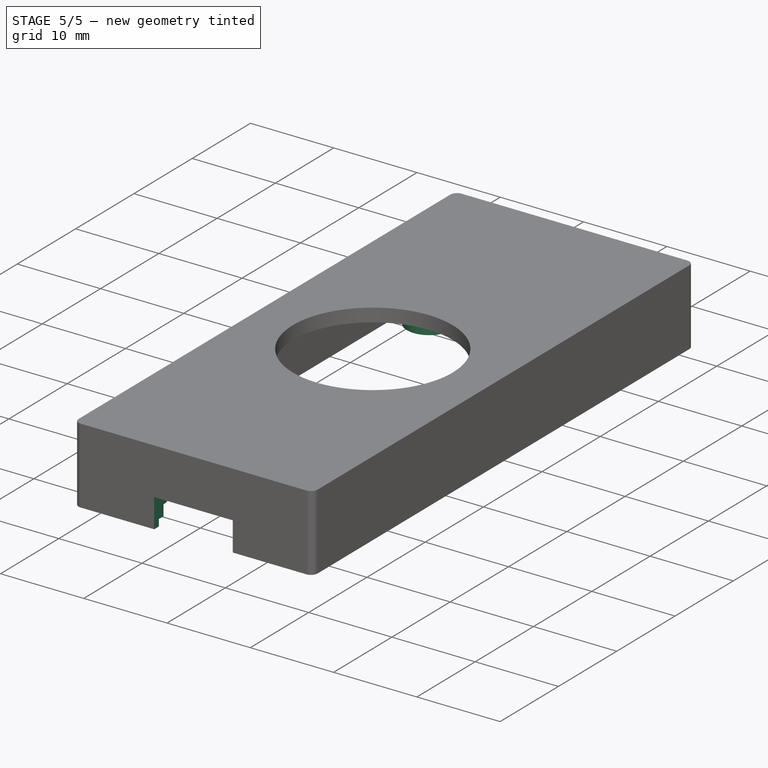
[diagram: stage 5 of 5 — iso view after this stage's code; geometry added in this stage tinted green]
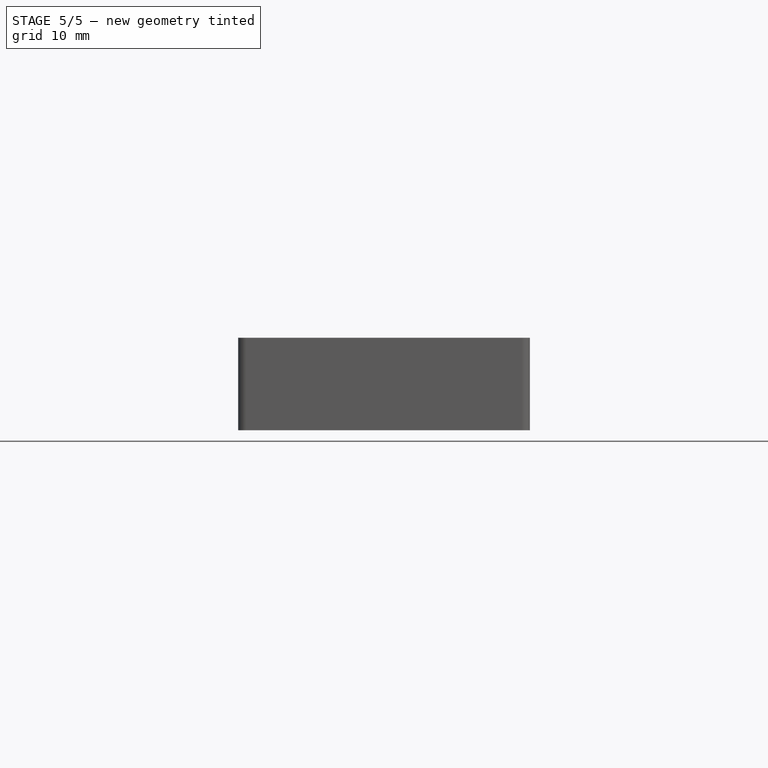
[diagram: stage 5 of 5 — front view after this stage's code; geometry added in this stage tinted green]
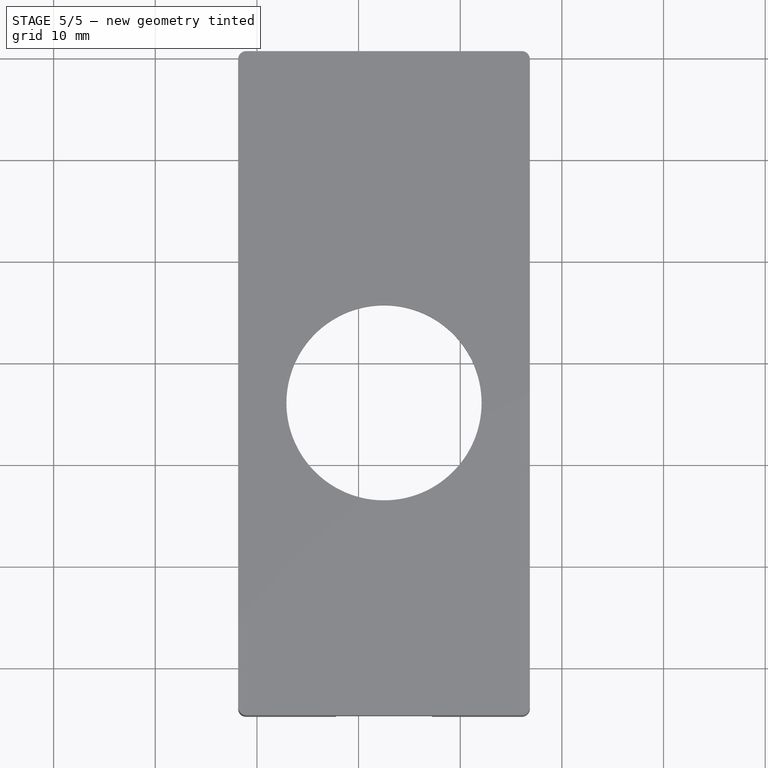
[diagram: stage 5 of 5 — top view after this stage's code; geometry added in this stage tinted green]
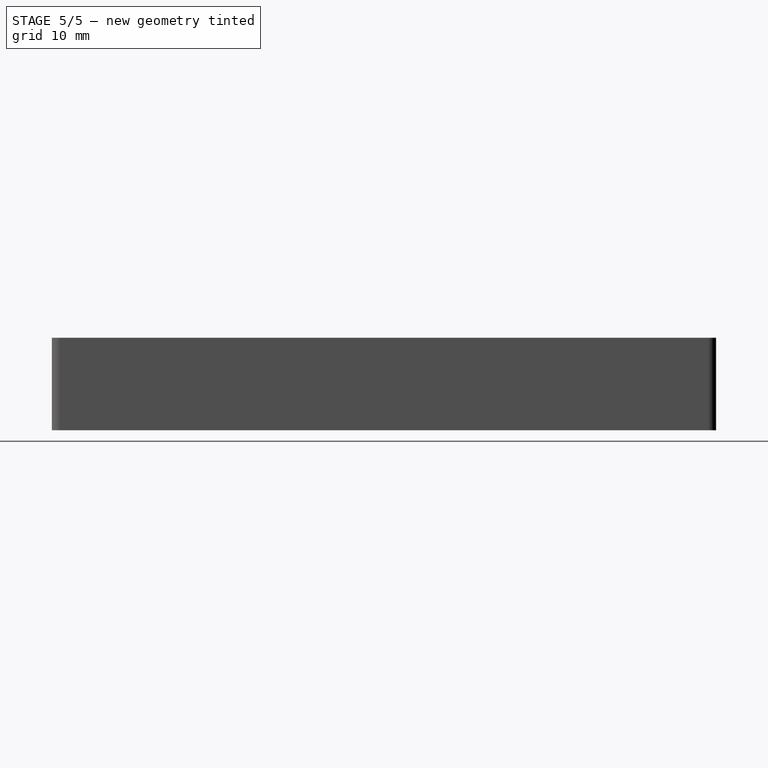
[diagram: stage 5 of 5 — right view after this stage's code; geometry added in this stage tinted green]
FEATURE [Sketcher::SketchObject] Sketch010
  ArcFitTolerance = 1e-06
  AttachmentSupport = -> [Fillet001]
  ExternalGeometry = -> [Binder002]
  FullyConstrained = true
  MakeInternals = false
  MapMode = 5
  Placement = pos=(0,0,9.01) rot=(1,0,0;3.14159rad)
  sketch-geometry (4):
    g0: Circle CenterX=2.5 CenterY=-0.5 CenterZ=0 NormalX=0 NormalY=0 NormalZ=1 AngleXU=0 Radius=2.7
    g1: Circle CenterX=22.5 CenterY=-0.5 CenterZ=0 NormalX=0 NormalY=0 NormalZ=1 AngleXU=0 Radius=2.7
    g2: Circle CenterX=2.5 CenterY=-50 CenterZ=0 NormalX=0 NormalY=0 NormalZ=1 AngleXU=0 Radius=2.7
    g3: Circle CenterX=22.5 CenterY=-50 CenterZ=0 NormalX=0 NormalY=0 NormalZ=1 AngleXU=0 Radius=2.7
  constraints (8):
    c: Coincident(g0,g-6)
    c: Coincident(g1,g-5)
    c: Coincident(g2,g-3)
    c: Coincident(g3,g-4)
    c: Equal(g3,g2)
    c: Equal(g2,g0)
    c: Equal(g0,g1)
    c: Radius(g0) = 2.7
FEATURE [PartDesign::Pad] Pad005
  BaseFeature = -> Fillet001
  Direction = (0,0,-1)
  Length = 10
  Length2 = 10
  Profile = -> Sketch010
  ReferenceAxis = -> Sketch010 [N_Axis]
  Suppressed = false
  Type = 3
  UpToFace = -> Binder002 [Face4132]
FEATURE [Sketcher::SketchObject] Sketch011
  ArcFitTolerance = 1e-06
  AttachmentSupport = -> [Pad005]
  ExternalGeometry = -> [Pad005]
  FullyConstrained = true
  MakeInternals = false
  MapMode = 5
  Placement = pos=(0,0,1.51) rot=(1,0,0;3.14159rad)
  sketch-geometry (4):
    g0: Circle CenterX=2.5 CenterY=-0.5 CenterZ=0 NormalX=0 NormalY=0 NormalZ=1 AngleXU=0 Radius=1.65
    g1: Circle CenterX=22.5 CenterY=-0.5 CenterZ=0 NormalX=0 NormalY=0 NormalZ=1 AngleXU=0 Radius=1.65
    g2: Circle CenterX=2.5 CenterY=-50 CenterZ=0 NormalX=0 NormalY=0 NormalZ=1 AngleXU=0 Radius=1.65
    g3: Circle CenterX=22.5 CenterY=-50 CenterZ=0 NormalX=0 NormalY=0 NormalZ=1 AngleXU=0 Radius=1.65
  constraints (8):
    c: Coincident(g0,g-3)
    c: Coincident(g1,g-4)
    c: Coincident(g2,g-5)
    c: Coincident(g3,g-6)
    c: Equal(g2,g3)
    c: Equal(g3,g1)
    c: Equal(g1,g0)
    c: Radius(g0) = 1.65
FEATURE [PartDesign::Pocket] Pocket004
  BaseFeature = -> Pad005
  Direction = (0,0,1)
  Length = 3
  Length2 = 5
  Profile = -> Sketch011
  ReferenceAxis = -> Sketch011 [N_Axis]
  Suppressed = false
  Type = 0
FEATURE [Sketcher::SketchObject] Sketch012
  ArcFitTolerance = 1e-06
  AttachmentSupport = -> [Pocket004]
  ExternalGeometry = -> [Binder002,Pocket004]
  FullyConstrained = true
  MakeInternals = false
  MapMode = 5
  Placement = pos=(0,-3.15,0) rot=(0,0.707107,0.707107;3.14159rad)
  sketch-geometry (4):
    g0: LineSegment StartX=-17.22 StartY=5.005 StartZ=0 EndX=-17.22 EndY=1.51 EndZ=0
    g1: LineSegment StartX=-17.22 StartY=1.51 StartZ=0 EndX=-7.78 EndY=1.51 EndZ=0
    g2: LineSegment StartX=-7.78 StartY=1.51 StartZ=0 EndX=-7.78 EndY=5.005 EndZ=0
    g3: LineSegment StartX=-7.78 StartY=5.005 StartZ=0 EndX=-17.22 EndY=5.005 EndZ=0
  constraints (12):
    c: Coincident(g0,g1)
    c: Coincident(g1,g2)
    c: Coincident(g2,g3)
    c: Coincident(g3,g0)
    c: Vertical(g0)
    c: Vertical(g2)
    c: Horizontal(g1)
    c: Horizontal(g3)
    c: DistanceY(g-6,g0) = 0.25
    c: DistanceX(g0,g-6) = 0.25
    c: DistanceX(g-3,g2) = 0.25
    c: PointOnObject(g0,g-8)
FEATURE [PartDesign::Pocket] Pocket005
  BaseFeature = -> Pocket004
  Direction = (0,-1,2e-16)
  Length = 5
  Length2 = 5
  Profile = -> Sketch012
  ReferenceAxis = -> Sketch012 [N_Axis]
  Suppressed = false
  Type = 0
FEATURE [PartDesign::Body] Body001  label="Lid"
  AllowCompound = false
  Group = -> [Binder001,Sketch007,Pad004,Thickness001,Binder002,Sketch008,Pocket002,Sketch009,Pocket003,Fillet001,Sketch010,Pad005,Sketch011,Pocket004,Sketch012,Pocket005]
  Origin = -> Origin006
  Tip = -> Pocket005
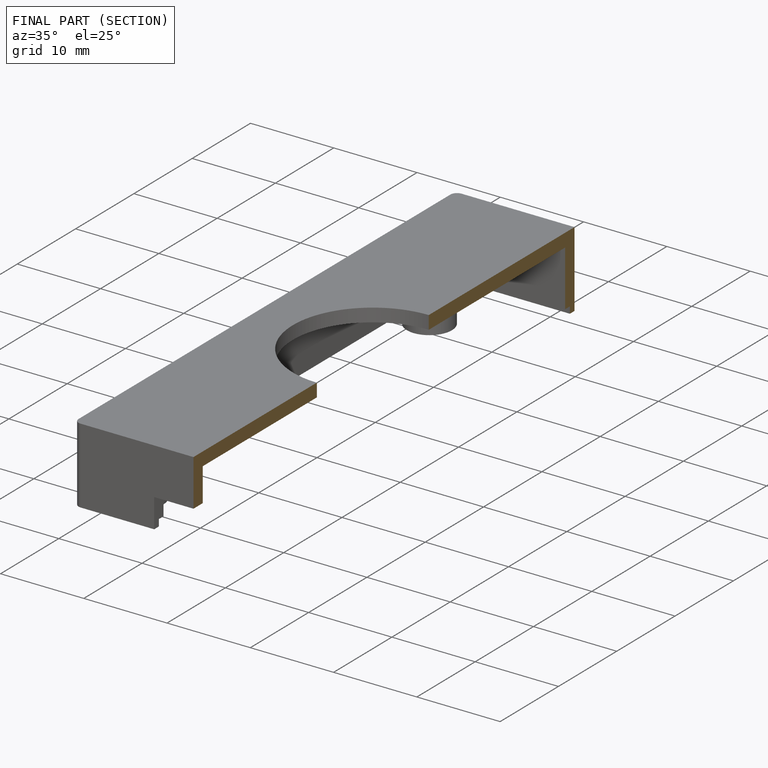
[diagram: finished part — half-section view (interior)]
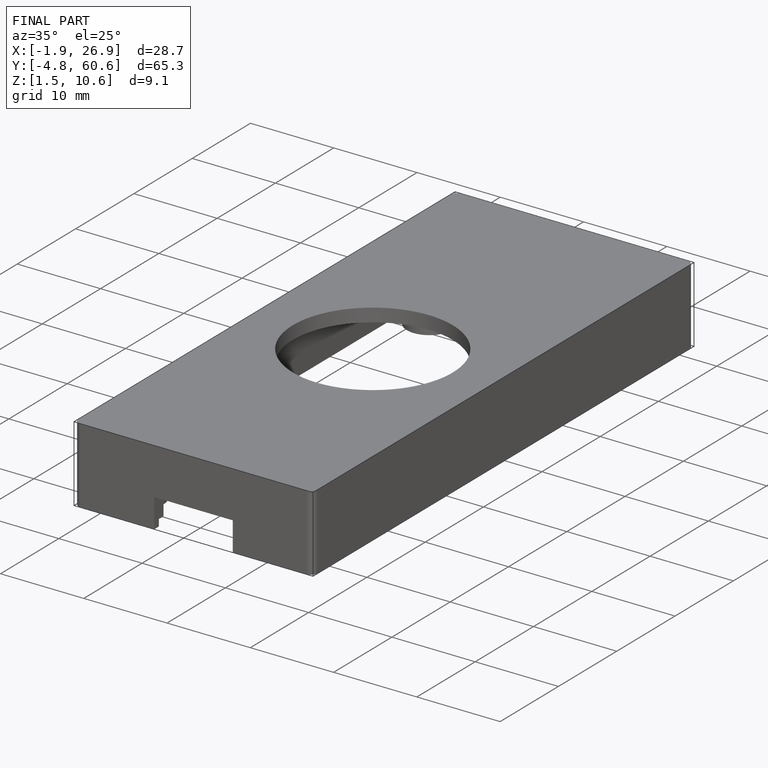
[diagram: finished part — iso view with bounding-box wireframe]
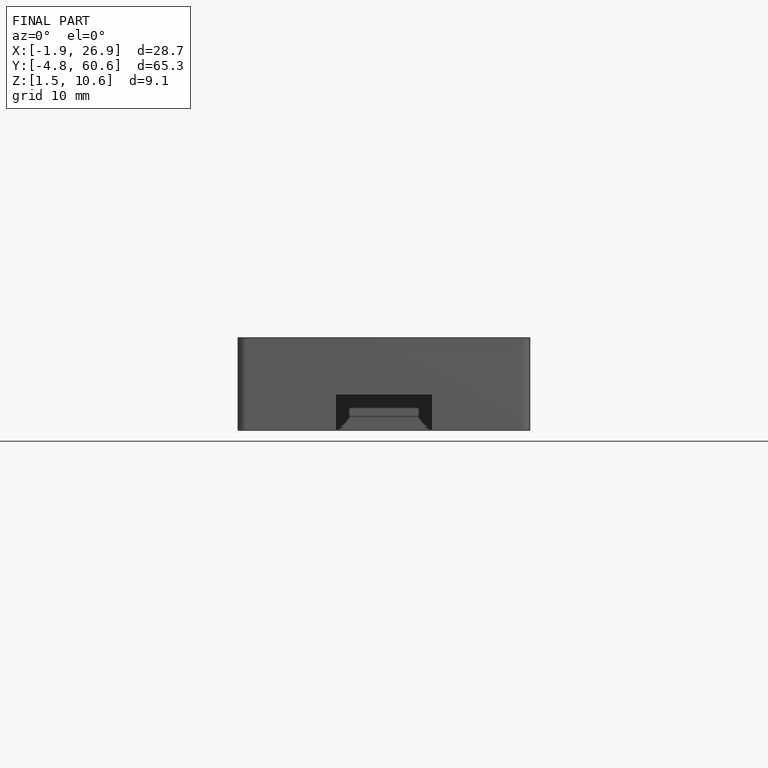
[diagram: finished part — front view with bounding-box wireframe]
